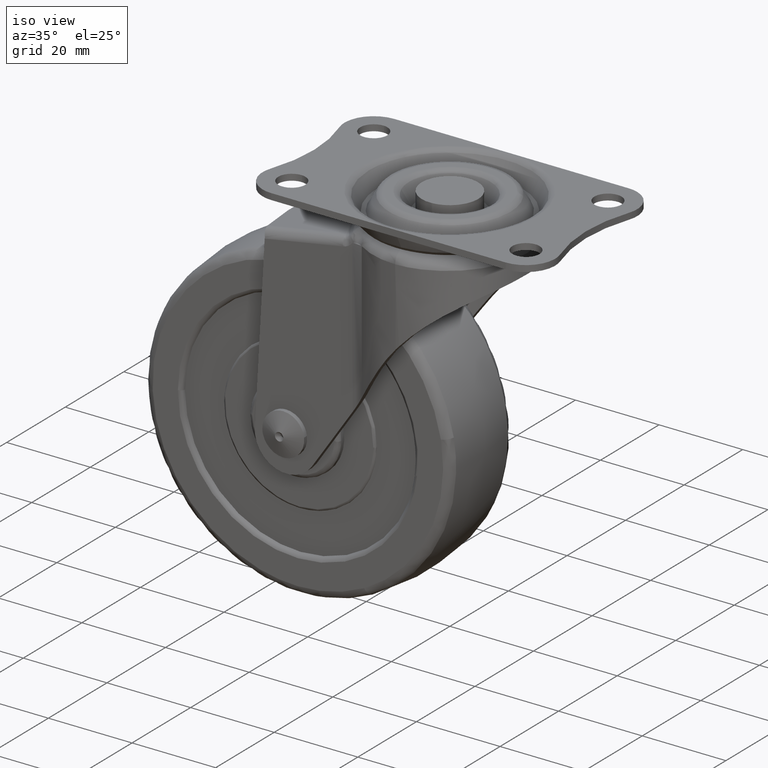
[diagram: clean part render]
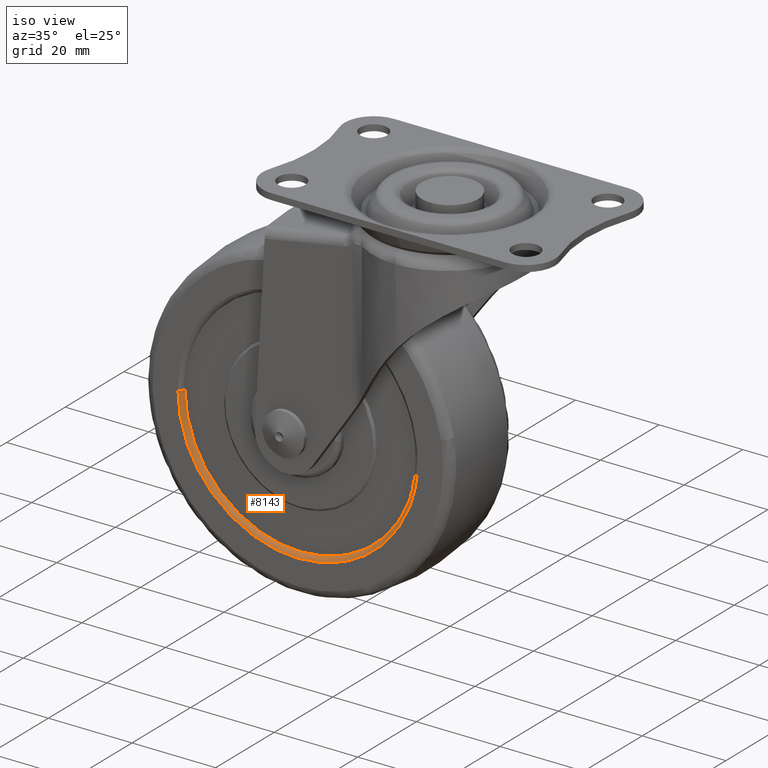
[diagram: same view with one face highlighted and labeled with its STEP entity id]
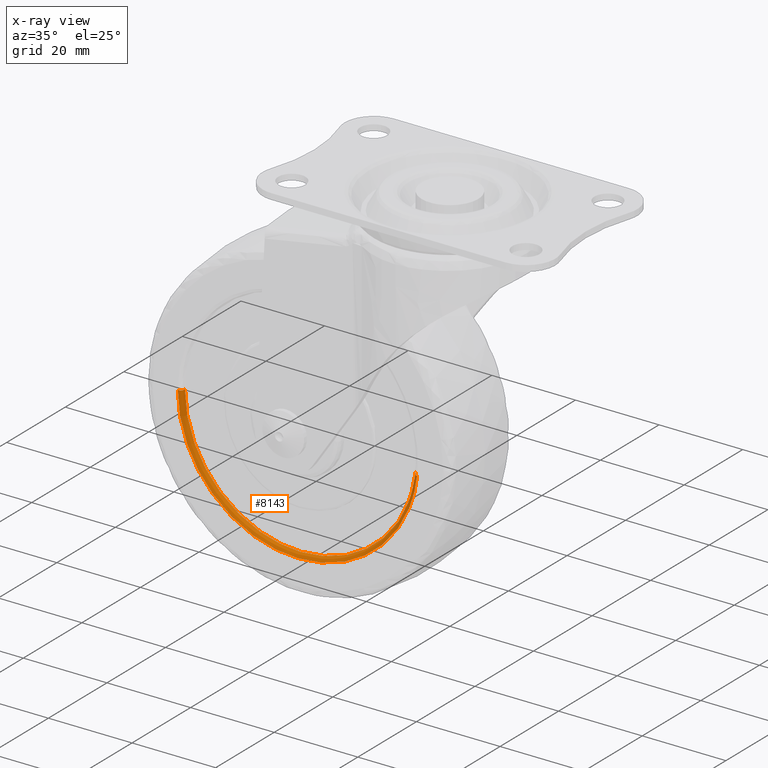
[diagram: x-ray of the same camera — body ghosted, the highlighted face saturated]
A machine part, iso view. The second image highlights one B-rep face of the part: STEP entity #8143.
The next image is the same camera in x-ray: the body ghosted, the highlighted face saturated — about 0% of this face is hidden behind the body in this view.
In plain terms, the highlighted face is a freeform B-spline surface patch.
Its self-contained STEP definition (entity closure, byte-faithful):
#7963=CARTESIAN_POINT('',(-1.485266612347644,-9.500000000102581,-56.198355267876167));
#7964=VERTEX_POINT('',#7963);
#7982=CARTESIAN_POINT('',(-0.491954977824418,-10.500000000000000,-56.313819496877592));
#7983=VERTEX_POINT('',#7982);
#7984=CARTESIAN_POINT('',(-0.491954977824418,-10.500000000000000,-56.313819496877592));
#7985=CARTESIAN_POINT('',(-1.485266612137816,-10.499999991458100,-56.198355267847880));
#7986=CARTESIAN_POINT('',(-1.485266612347644,-9.500000000102581,-56.198355267876174));
#7994=(BOUNDED_CURVE()B_SPLINE_CURVE(2,(#7984,#7985,#7986),.UNSPECIFIED.,.F.,.U.)B_SPLINE_CURVE_WITH_KNOTS((3,3),(-1.726807290788357,-0.285995334253494),.UNSPECIFIED.)CURVE()GEOMETRIC_REPRESENTATION_ITEM()RATIONAL_B_SPLINE_CURVE((0.844728322243129,0.595760588227662,0.840342784857198))REPRESENTATION_ITEM(''));
#7995=EDGE_CURVE('',#7983,#7964,#7994,.T.);
#8014=CARTESIAN_POINT('',(-57.700000996114952,-10.500000000000000,-52.999996000000003));
#8015=VERTEX_POINT('',#8014);
#8029=CARTESIAN_POINT('',(-56.700000999999993,-9.500000000148873,-52.999996000000003));
#8030=VERTEX_POINT('',#8029);
#8031=CARTESIAN_POINT('',(-57.700000996114952,-10.500000000000000,-52.999996000000003));
#8032=CARTESIAN_POINT('',(-56.700001000297746,-10.499999992229924,-52.999996000000010));
#8033=CARTESIAN_POINT('',(-56.700000999999993,-9.500000000148873,-52.999996000000003));
#8041=(BOUNDED_CURVE()B_SPLINE_CURVE(2,(#8031,#8032,#8033),.UNSPECIFIED.,.F.,.U.)B_SPLINE_CURVE_WITH_KNOTS((3,3),(-1.726807291576745,-0.285995334347577),.UNSPECIFIED.)CURVE()GEOMETRIC_REPRESENTATION_ITEM()RATIONAL_B_SPLINE_CURVE((0.882788773352524,0.622603439201929,0.878205638947119))REPRESENTATION_ITEM(''));
#8042=EDGE_CURVE('',#8015,#8030,#8041,.T.);
#8060=CARTESIAN_POINT('',(-57.769355189025958,-10.497592099239238,-52.999996000000003));
#8061=CARTESIAN_POINT('',(-57.769355189025987,-10.497592099239236,-81.769351189025954));
#8062=CARTESIAN_POINT('',(-29.000000000000004,-10.497592099239238,-81.769351189025954));
#8063=CARTESIAN_POINT('',(-3.381127966029824,-10.497592099239236,-81.769351189025954));
#8064=CARTESIAN_POINT('',(-0.423064650398523,-10.497592099239238,-56.321827425137755));
#8065=CARTESIAN_POINT('',(-56.622261224209844,-10.577339895685377,-52.999995999999982));
#8066=CARTESIAN_POINT('',(-56.622261224209858,-10.577339895685379,-80.622257224209861));
#8067=CARTESIAN_POINT('',(-28.999999999999993,-10.577339895685377,-80.622257224209847));
#8068=CARTESIAN_POINT('',(-4.402605621767237,-10.577339895685384,-80.622257224209847));
#8069=CARTESIAN_POINT('',(-1.562486436430488,-10.577339895685380,-56.189379104524527));
#8070=CARTESIAN_POINT('',(-56.702434707119380,-9.430275604639009,-52.999995999999996));
#8071=CARTESIAN_POINT('',(-56.702434707119409,-9.430275604639011,-80.702430707119376));
#8072=CARTESIAN_POINT('',(-29.000000000000004,-9.430275604639009,-80.702430707119390));
#8073=CARTESIAN_POINT('',(-4.331211800609906,-9.430275604639013,-80.702430707119376));
#8074=CARTESIAN_POINT('',(-1.482849182734511,-9.430275604639011,-56.198636273941155));
#8082=(BOUNDED_SURFACE()B_SPLINE_SURFACE(2,2,((#8060,#8065,#8070),(#8061,#8066,#8071),(#8062,#8067,#8072),(#8063,#8068,#8073),(#8064,#8069,#8074)),.UNSPECIFIED.,.F.,.F.,.U.)B_SPLINE_SURFACE_WITH_KNOTS((3,2,3),(3,3),(0.0,47.666628400093323,91.519926528179170),(0.0,1.822374953807910),.UNSPECIFIED.)GEOMETRIC_REPRESENTATION_ITEM()RATIONAL_B_SPLINE_SURFACE(((0.910069696650937,0.595552178160855,0.905027260895337),(0.643516453854262,0.421118983727959,0.639950913337780),(0.910069696650937,0.595552178160855,0.905027260895337),(0.664840713277996,0.435073639282591,0.661157021142385),(0.870833059311267,0.569875611940332,0.866008022534865)))REPRESENTATION_ITEM('')SURFACE());
#8083=CARTESIAN_POINT('',(-29.0,-9.500000000000000,-80.699996999999996));
#8084=VERTEX_POINT('',#8083);
#8085=CARTESIAN_POINT('',(-29.0,-9.500000000000000,-80.699996999999996));
#8086=CARTESIAN_POINT('',(-4.333378996695816,-9.500000000000000,-80.699996999999982));
#8087=CARTESIAN_POINT('',(-1.485266612347644,-9.500000000102581,-56.198355267876167));
#8095=(BOUNDED_CURVE()B_SPLINE_CURVE(2,(#8085,#8086,#8087),.UNSPECIFIED.,.F.,.U.)B_SPLINE_CURVE_WITH_KNOTS((3,3),(0.0,0.229999999999361),.UNSPECIFIED.)CURVE()GEOMETRIC_REPRESENTATION_ITEM()RATIONAL_B_SPLINE_CURVE((1.0,0.730538238692373,0.956886118189402))REPRESENTATION_ITEM(''));
#8096=EDGE_CURVE('',#8084,#7964,#8095,.T.);
#8097=ORIENTED_EDGE('',*,*,#8096,.F.);
#8098=CARTESIAN_POINT('',(-56.700000999999993,-9.500000000148873,-52.999996000000003));
#8099=CARTESIAN_POINT('',(-56.700001000000007,-9.500000000000000,-80.699996999999996));
#8100=CARTESIAN_POINT('',(-29.0,-9.500000000000000,-80.699996999999996));
#8108=(BOUNDED_CURVE()B_SPLINE_CURVE(2,(#8098,#8099,#8100),.UNSPECIFIED.,.F.,.U.)B_SPLINE_CURVE_WITH_KNOTS((3,3),(0.750000000000000,1.0),.UNSPECIFIED.)CURVE()GEOMETRIC_REPRESENTATION_ITEM()RATIONAL_B_SPLINE_CURVE((1.0,0.707106781186548,1.0))REPRESENTATION_ITEM(''));
#8109=EDGE_CURVE('',#8030,#8084,#8108,.T.);
#8110=ORIENTED_EDGE('',*,*,#8109,.F.);
#8111=ORIENTED_EDGE('',*,*,#8042,.F.);
#8112=CARTESIAN_POINT('',(-29.0,-10.500000000000000,-81.699996999999996));
#8113=VERTEX_POINT('',#8112);
#8114=CARTESIAN_POINT('',(-57.700000996114952,-10.500000000000000,-52.999996000000003));
#8115=CARTESIAN_POINT('',(-57.700001000000000,-10.500000000000000,-81.699996999999996));
#8116=CARTESIAN_POINT('',(-29.0,-10.500000000000000,-81.699996999999996));
#8124=(BOUNDED_CURVE()B_SPLINE_CURVE(2,(#8114,#8115,#8116),.UNSPECIFIED.,.F.,.U.)B_SPLINE_CURVE_WITH_KNOTS((3,3),(0.750000000000000,1.0),.UNSPECIFIED.)CURVE()GEOMETRIC_REPRESENTATION_ITEM()RATIONAL_B_SPLINE_CURVE((1.0,0.707106781186547,1.0))REPRESENTATION_ITEM(''));
#8125=EDGE_CURVE('',#8015,#8113,#8124,.T.);
#8126=ORIENTED_EDGE('',*,*,#8125,.T.);
#8127=CARTESIAN_POINT('',(-29.0,-10.500000000000000,-81.699996999999996));
#8128=CARTESIAN_POINT('',(-3.442887296171222,-10.500000000000000,-81.699996999999996));
#8129=CARTESIAN_POINT('',(-0.491954977824418,-10.499999999999996,-56.313819496877585));
#8137=(BOUNDED_CURVE()B_SPLINE_CURVE(2,(#8127,#8128,#8129),.UNSPECIFIED.,.F.,.U.)B_SPLINE_CURVE_WITH_KNOTS((3,3),(0.0,0.229999999997395),.UNSPECIFIED.)CURVE()GEOMETRIC_REPRESENTATION_ITEM()RATIONAL_B_SPLINE_CURVE((1.0,0.730538238694675,0.956886118185533))REPRESENTATION_ITEM(''));
#8138=EDGE_CURVE('',#8113,#7983,#8137,.T.);
#8139=ORIENTED_EDGE('',*,*,#8138,.T.);
#8140=ORIENTED_EDGE('',*,*,#7995,.T.);
#8141=EDGE_LOOP('',(#8097,#8110,#8111,#8126,#8139,#8140));
#8142=FACE_OUTER_BOUND('',#8141,.T.);
#8143=ADVANCED_FACE('',(#8142),#8082,.T.);